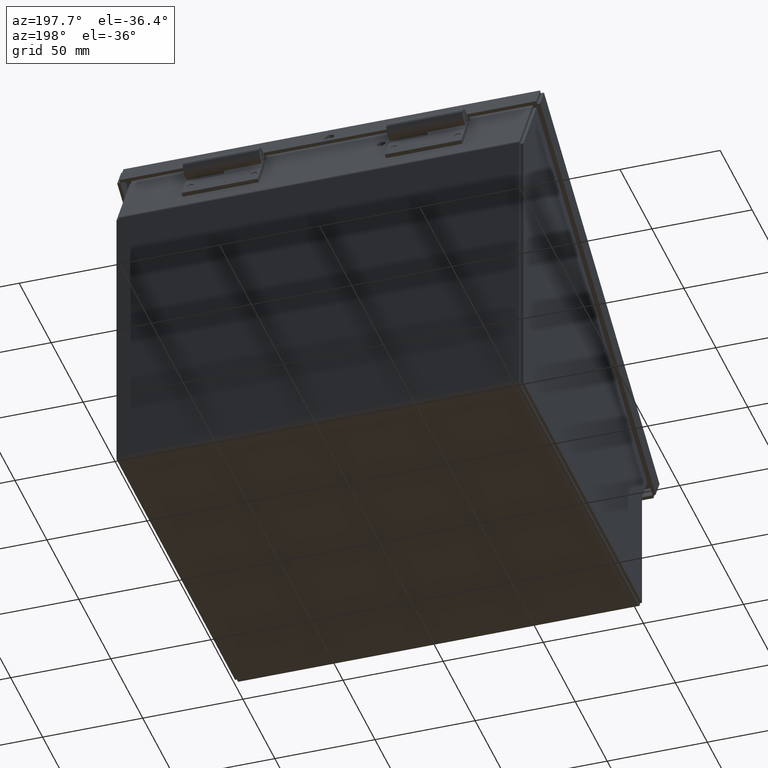
[diagram: clean part render]
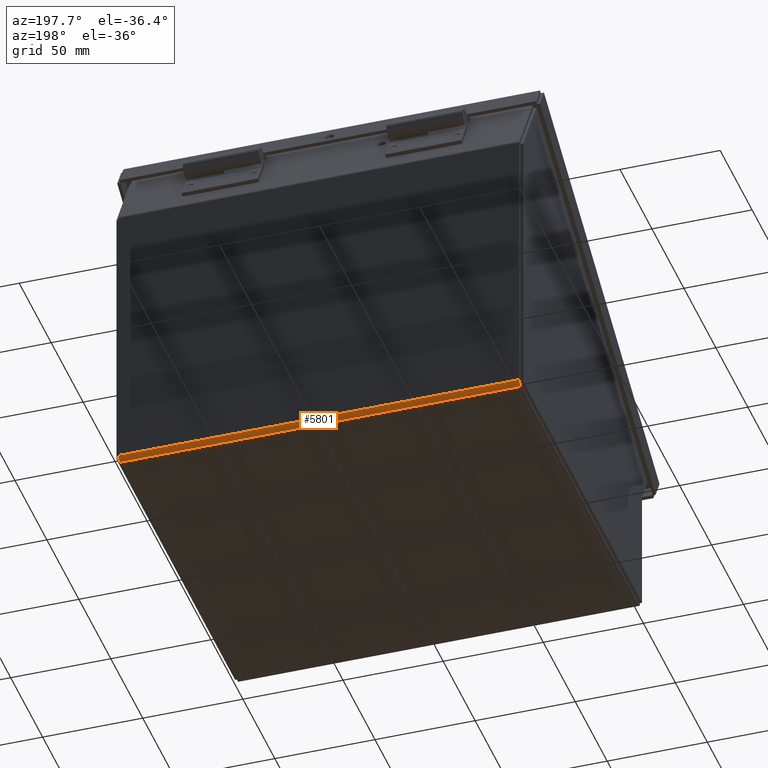
[diagram: same view with one face highlighted and labeled with its STEP entity id]
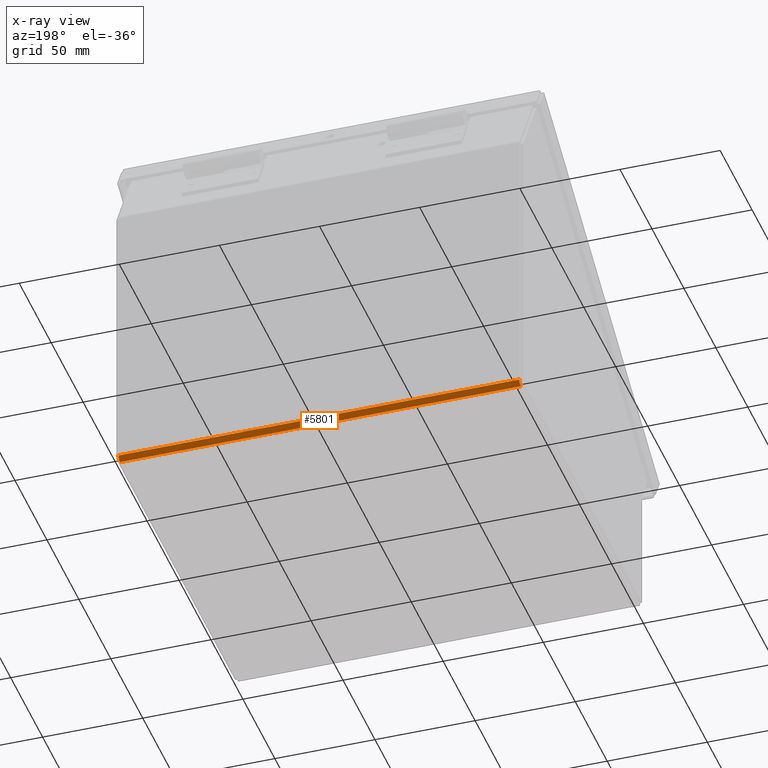
[diagram: x-ray of the same camera — body ghosted, the highlighted face saturated]
A machine part, auxiliary view. The second image highlights one B-rep face of the part: STEP entity #5801.
The next image is the same camera in x-ray: the body ghosted, the highlighted face saturated — about 0% of this face is hidden behind the body in this view.
In plain terms, the highlighted cylindrical surface (edge-blend (fillet) strip) has radius 2.3368 mm, axis along (-1, 0, 0).
Its self-contained STEP definition (entity closure, byte-faithful):
#5801 = ADVANCED_FACE( '', ( #11690 ), #11691, .T. );
#11690 = FACE_OUTER_BOUND( '', #45035, .T. );
#11691 = CYLINDRICAL_SURFACE( '', #45036, 2.33680000000000 );
#45035 = EDGE_LOOP( '', ( #64504, #64505, #64506, #64507 ) );
#45036 = AXIS2_PLACEMENT_3D( '', #64508, #64509, #64510 );
#64504 = ORIENTED_EDGE( '', *, *, #68845, .F. );
#64505 = ORIENTED_EDGE( '', *, *, #69231, .F. );
#64506 = ORIENTED_EDGE( '', *, *, #68276, .F. );
#64507 = ORIENTED_EDGE( '', *, *, #68048, .F. );
#64508 = CARTESIAN_POINT( '', ( -100.076000000000, 91.9861000000000, 2.33680000000000 ) );
#64509 = DIRECTION( '', ( -1.00000000000000, -0.000000000000000, 0.000000000000000 ) );
#64510 = DIRECTION( '', ( 0.000000000000000, 0.000000000000000, 1.00000000000000 ) );
#68048 = EDGE_CURVE( '', #76067, #76069, #76070, .T. );
#68276 = EDGE_CURVE( '', #76069, #76396, #76400, .T. );
#68845 = EDGE_CURVE( '', #77161, #76067, #77163, .T. );
#69231 = EDGE_CURVE( '', #76396, #77161, #77670, .T. );
#76067 = VERTEX_POINT( '', #95659 );
#76069 = VERTEX_POINT( '', #95662 );
#76070 = CIRCLE( '', #95663, 2.33680000000000 );
#76396 = VERTEX_POINT( '', #96641 );
#76400 = LINE( '', #96647, #96648 );
#77161 = VERTEX_POINT( '', #98786 );
#77163 = LINE( '', #98789, #98790 );
#77670 = CIRCLE( '', #100210, 2.33680000000000 );
#95659 = CARTESIAN_POINT( '', ( 100.076000000000, 91.9861000000000, 0.000000000000000 ) );
#95662 = CARTESIAN_POINT( '', ( 100.076000000000, 94.3229000000000, 2.33680000000000 ) );
#95663 = AXIS2_PLACEMENT_3D( '', #105559, #105560, #105561 );
#96641 = CARTESIAN_POINT( '', ( -100.076000000000, 94.3229000000000, 2.33680000000000 ) );
#96647 = CARTESIAN_POINT( '', ( 100.076000000000, 94.3229000000000, 2.33680000000000 ) );
#96648 = VECTOR( '', #105684, 1000.00000000000 );
#98786 = CARTESIAN_POINT( '', ( -100.076000000000, 91.9861000000000, 0.000000000000000 ) );
#98789 = CARTESIAN_POINT( '', ( -100.076000000000, 91.9861000000000, 0.000000000000000 ) );
#98790 = VECTOR( '', #105950, 1000.00000000000 );
#100210 = AXIS2_PLACEMENT_3D( '', #106144, #106145, #106146 );
#105559 = CARTESIAN_POINT( '', ( 100.076000000000, 91.9861000000000, 2.33680000000000 ) );
#105560 = DIRECTION( '', ( 1.00000000000000, 0.000000000000000, -0.000000000000000 ) );
#105561 = DIRECTION( '', ( 0.000000000000000, 0.000000000000000, 1.00000000000000 ) );
#105684 = DIRECTION( '', ( -1.00000000000000, 0.000000000000000, 0.000000000000000 ) );
#105950 = DIRECTION( '', ( 1.00000000000000, 0.000000000000000, 0.000000000000000 ) );
#106144 = CARTESIAN_POINT( '', ( -100.076000000000, 91.9861000000000, 2.33680000000000 ) );
#106145 = DIRECTION( '', ( -1.00000000000000, 0.000000000000000, 0.000000000000000 ) );
#106146 = DIRECTION( '', ( 0.000000000000000, 0.000000000000000, 1.00000000000000 ) );